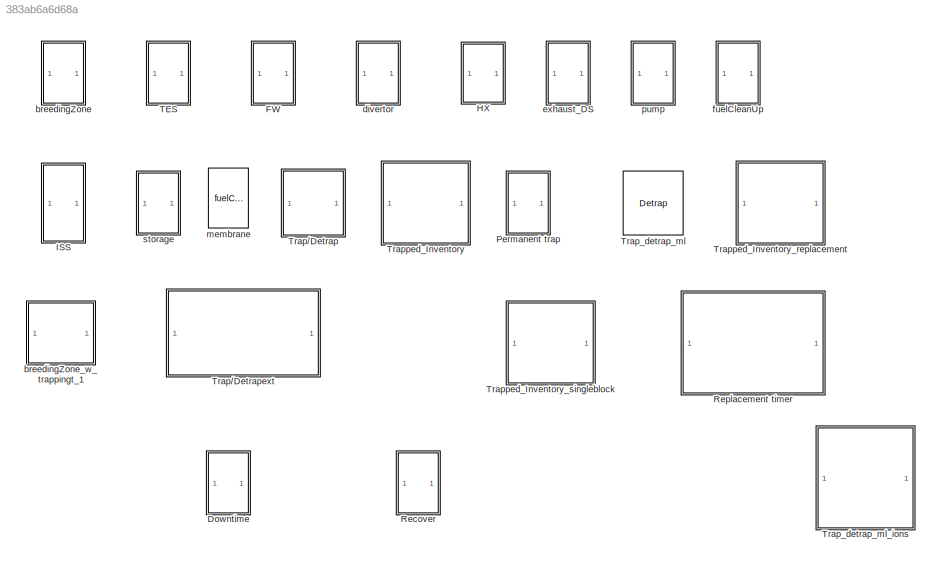
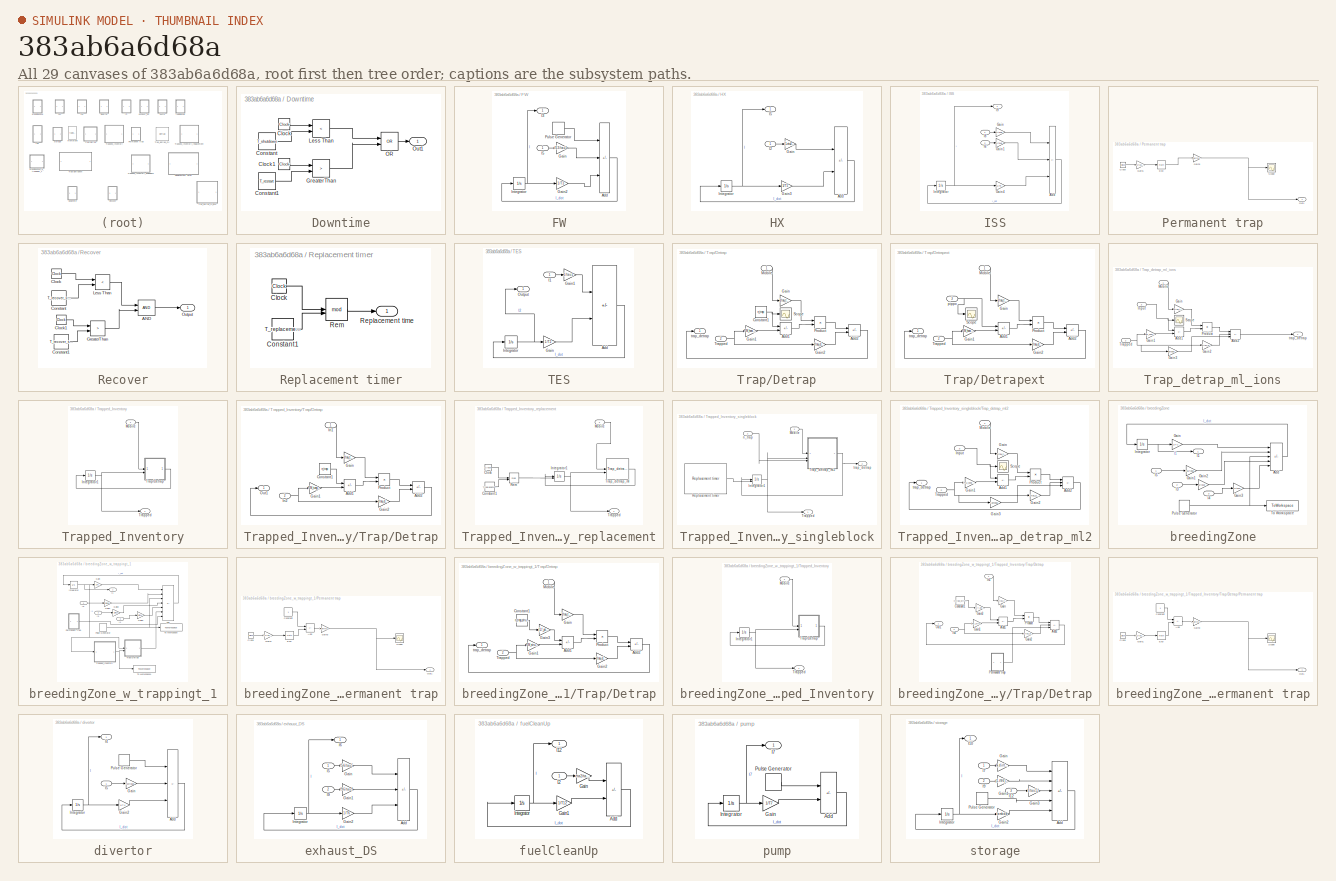
[diagram: thumbnail index - all 29 canvases of the model, root first then tree order]
MODEL slx_383ab6a6d68a
KIND library
CONFIG AbsTol = auto
CONFIG EnableMultiTasking = off
CONFIG FixedStep = auto
CONFIG MaxStep = auto
CONFIG MinStep = auto
CONFIG RelTol = 1e-3
CONFIG SampleTimeConstraint = Unconstrained
CONFIG SolverName = VariableStepAuto
CONFIG StartTime = 0.0
CONFIG StopTime = 10.0
BLOCK [SubSystem] Downtime
BLOCK [Clock] Downtime/Clock
BLOCK [Clock] Downtime/Clock1
BLOCK [Constant] Downtime/Constant
  Value = T_shutdown
BLOCK [Constant] Downtime/Constant1
  Value = T_restart
BLOCK [RelationalOperator] Downtime/GreaterThan
  InputSameDT = off
  Operator = >
  OutDataTypeStr = boolean
  RndMeth = Simplest
BLOCK [RelationalOperator] Downtime/Less Than
  InputSameDT = off
  Operator = <
  OutDataTypeStr = boolean
  RndMeth = Simplest
BLOCK [Logic] Downtime/OR
  AllPortsSameDT = off
  IconShape = distinctive
  Operator = OR
  OutDataTypeStr = boolean
BLOCK [Outport] Downtime/Out1
BLOCK [SubSystem] FW
  LibrarySourceBlock = arc/FW_3
BLOCK [Sum] FW/Add
  IconShape = rectangular
  Inputs = ++-
BLOCK [Gain] FW/Gain
  Gain = f53/tau5
BLOCK [Gain] FW/Gain2
  Gain = 1/T3
BLOCK [Outport] FW/I3
BLOCK [Inport] FW/I5
BLOCK [Integrator] FW/Integrator
BLOCK [DiscretePulseGenerator] FW/Pulse Generator
  Amplitude = fp3*N_dot/TBE
  Period = 1800
  PulseType = Time based
  PulseWidth = AF
BLOCK [SubSystem] HX
BLOCK [Sum] HX/Add
  IconShape = rectangular
  Inputs = +-
BLOCK [Gain] HX/Gain
  Gain = (1-eta2)/tau2
BLOCK [Gain] HX/Gain3
  Gain = 1/T5
BLOCK [Inport] HX/I2
BLOCK [Outport] HX/I5
BLOCK [Integrator] HX/Integrator
BLOCK [SubSystem] ISS
  LibrarySourceBlock = arc/ISS_9
BLOCK [Sum] ISS/Add
  IconShape = rectangular
  Inputs = ++-
BLOCK [Gain] ISS/Gain
  Gain = 1/tau8
BLOCK [Gain] ISS/Gain1
  Gain = 1/tau6
BLOCK [Gain] ISS/Gain4
  Gain = 1/T9
BLOCK [Inport] ISS/I6
  Port = 2
BLOCK [Inport] ISS/I8
BLOCK [Outport] ISS/I9
BLOCK [Integrator] ISS/Integrator
BLOCK [SubSystem] Permanent trap
BLOCK [Clock] Permanent trap/Clock
BLOCK [Math] Permanent trap/Exp
BLOCK [Gain] Permanent trap/Gain1
  Gain = -1/tau_permanent
BLOCK [Gain] Permanent trap/Gain3
  Gain = f_permanent_trap*n_trap*n_tungsten*3*m_u*1/tau_permanent
BLOCK [Outport] Permanent trap/Out1
BLOCK [Scope] Permanent trap/Scope
  Floating = off
  NumInputPorts = 1
  ScopeSpecificationString = Simulink.scopes.TimeScopeBlockCfg('CurrentConfiguration', extmgr.ConfigurationSet(extmgr.Configuration('Core','General UI',true),extmgr.Configuration('Core','Source UI',true),extmgr.Configuration('Sources','WiredSimulink',true,'DataLoggingVariableName','ScopeData1'),extmgr.Configuration('Visuals','Time Domain',true,'SerializedDisplays',{struct('MinYLimReal','-0.0000004','MaxYLimReal','0.0000036','...<+1380ch>  <repeated x3 — deduplicated; at blocks: Scope>
BLOCK [SubSystem] Recover
BLOCK [Logic] Recover/AND
  AllPortsSameDT = off
  IconShape = distinctive
  OutDataTypeStr = boolean
BLOCK [Clock] Recover/Clock
BLOCK [Clock] Recover/Clock1
BLOCK [Constant] Recover/Constant
  Value = T_recover_stop
BLOCK [Constant] Recover/Constant1
  Value = T_recover_start
BLOCK [RelationalOperator] Recover/GreaterThan
  InputSameDT = off
  Operator = >
  OutDataTypeStr = boolean
  RndMeth = Simplest
BLOCK [RelationalOperator] Recover/Less Than
  InputSameDT = off
  Operator = <
  OutDataTypeStr = boolean
  RndMeth = Simplest
BLOCK [Outport] Recover/Output
BLOCK [SubSystem] Replacement timer
BLOCK [Clock] Replacement timer/Clock
BLOCK [Constant] Replacement timer/Constant1
  Value = T_replacement
BLOCK [Math] Replacement timer/Rem
  Operator = mod
BLOCK [Outport] Replacement timer/Replacement time
BLOCK [SubSystem] TES
  LibrarySourceBlock = arc/TES_2
BLOCK [Sum] TES/Add
  IconShape = rectangular
  Inputs = +-
BLOCK [Gain] TES/Gain
  Gain = 1/T2
BLOCK [Gain] TES/Gain1
  Gain = 1/tau1
BLOCK [Inport] TES/I1
BLOCK [Integrator] TES/Integrator
BLOCK [Outport] TES/Output
  IconDisplay = Signal name
BLOCK [SubSystem] Trap//Detrap
BLOCK [Sum] Trap//Detrap/Add1
  IconShape = rectangular
  Inputs = +-
BLOCK [Sum] Trap//Detrap/Add2
  IconShape = rectangular
  Inputs = +-
BLOCK [Constant] Trap//Detrap/Constant1
  Value = n_trap
BLOCK [Gain] Trap//Detrap/Gain
  Gain = 1/tau_trap/n_solute
BLOCK [Gain] Trap//Detrap/Gain1
  Gain = PM_host/PM_tritium/M_host
BLOCK [Gain] Trap//Detrap/Gain2
  Gain = 1/tau_detrap
BLOCK [Inport] Trap//Detrap/Mobile
BLOCK [Product] Trap//Detrap/Product
BLOCK [Scope] Trap//Detrap/Scope
  Floating = off
  NumInputPorts = 1
  ScopeSpecificationString = Simulink.scopes.TimeScopeBlockCfg('CurrentConfiguration', extmgr.ConfigurationSet(extmgr.Configuration('Core','General UI',true),extmgr.Configuration('Core','Source UI',true),extmgr.Configuration('Sources','WiredSimulink',true,'DataLoggingVariableName','ScopeData1'),extmgr.Configuration('Visuals','Time Domain',true),extmgr.Configuration('Tools','Plot Navigation',true),extmgr.Configuration('Tools',...<+40ch>
BLOCK [Inport] Trap//Detrap/Trapped
  Port = 2
BLOCK [Outport] Trap//Detrap/trap_detrap
BLOCK [SubSystem] Trap//Detrapext
  AncestorBlock = arc/Trap//Detrap
BLOCK [Sum] Trap//Detrapext/Add1
  IconShape = rectangular
  Inputs = +-
BLOCK [Sum] Trap//Detrapext/Add2
  IconShape = rectangular
  Inputs = +-
BLOCK [Gain] Trap//Detrapext/Gain
  Gain = 1/tau_trap/n_solute
BLOCK [Gain] Trap//Detrapext/Gain1
  Gain = PM_host/PM_tritium/M_host
BLOCK [Gain] Trap//Detrapext/Gain2
  Gain = 1/tau_detrap
BLOCK [Inport] Trap//Detrapext/Mobile
BLOCK [Product] Trap//Detrapext/Product
BLOCK [Scope] Trap//Detrapext/Scope
  Floating = off
  NumInputPorts = 1
  ScopeSpecificationString = Simulink.scopes.TimeScopeBlockCfg('CurrentConfiguration', extmgr.ConfigurationSet(extmgr.Configuration('Core','General UI',true),extmgr.Configuration('Core','Source UI',true),extmgr.Configuration('Sources','WiredSimulink',true,'DataLoggingVariableName','ScopeData1'),extmgr.Configuration('Visuals','Time Domain',true),extmgr.Configuration('Tools','Plot Navigation',true),extmgr.Configuration('Tools',...<+40ch>
BLOCK [Inport] Trap//Detrapext/Trapped
  Port = 2
BLOCK [Inport] Trap//Detrapext/pippo
  Port = 3
BLOCK [Outport] Trap//Detrapext/trap_detrap
BLOCK [Reference] Trap_detrap_ml  REF=$bdroot/Trap//Detrap
  SourceBlock = $bdroot/Trap//Detrap
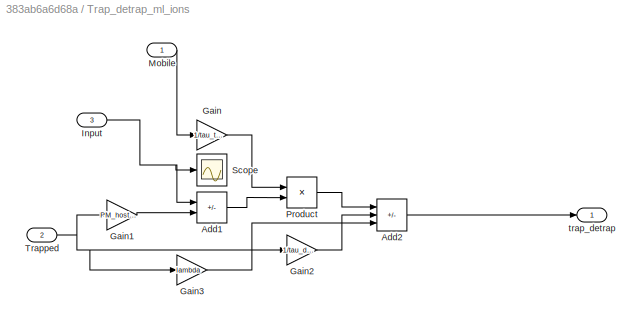
BLOCK [SubSystem] Trap_detrap_ml_ions
  AncestorBlock = arc/Trapped_Inventory_singleblock/Trap_detrap_ml2
BLOCK [Sum] Trap_detrap_ml_ions/Add1
  IconShape = rectangular
  Inputs = +-
BLOCK [Sum] Trap_detrap_ml_ions/Add2
  IconShape = rectangular
  Inputs = +--
BLOCK [Gain] Trap_detrap_ml_ions/Gain
  Gain = 1/tau_trap/n_solute
BLOCK [Gain] Trap_detrap_ml_ions/Gain1
  Gain = PM_host/PM_tritium/M_host
BLOCK [Gain] Trap_detrap_ml_ions/Gain2
  Gain = 1/tau_detrap
BLOCK [Gain] Trap_detrap_ml_ions/Gain3
  Gain = lambda
BLOCK [Inport] Trap_detrap_ml_ions/Input
  Port = 3
BLOCK [Inport] Trap_detrap_ml_ions/Mobile
BLOCK [Product] Trap_detrap_ml_ions/Product
BLOCK [Scope] Trap_detrap_ml_ions/Scope
  Floating = off
  NumInputPorts = 1
  ScopeSpecificationString = Simulink.scopes.TimeScopeBlockCfg('CurrentConfiguration', extmgr.ConfigurationSet(extmgr.Configuration('Core','General UI',true),extmgr.Configuration('Core','Source UI',true),extmgr.Configuration('Sources','WiredSimulink',true,'DataLoggingVariableName','ScopeData1'),extmgr.Configuration('Visuals','Time Domain',true,'SerializedDisplays',{struct('MinYLimReal','-0.00026','MaxYLimReal','0.0023','YLabe...<+1395ch>
BLOCK [Inport] Trap_detrap_ml_ions/Trapped
  Port = 2
BLOCK [Outport] Trap_detrap_ml_ions/trap_detrap
BLOCK [SubSystem] Trapped_Inventory
BLOCK [Integrator] Trapped_Inventory/Integrator1
BLOCK [Inport] Trapped_Inventory/Mobile
BLOCK [SubSystem] Trapped_Inventory/Trap//Detrap
BLOCK [Sum] Trapped_Inventory/Trap//Detrap/Add1
  IconShape = rectangular
  Inputs = +-
BLOCK [Sum] Trapped_Inventory/Trap//Detrap/Add2
  IconShape = rectangular
  Inputs = +-
BLOCK [Constant] Trapped_Inventory/Trap//Detrap/Constant1
  Value = n_trap
BLOCK [Gain] Trapped_Inventory/Trap//Detrap/Gain
  Gain = 1/tau_trap/n_solute
BLOCK [Gain] Trapped_Inventory/Trap//Detrap/Gain1
  Gain = PM_tungsten/PM_tritium/M_tungsten
BLOCK [Gain] Trapped_Inventory/Trap//Detrap/Gain2
  Gain = 1/tau_detrap
BLOCK [Inport] Trapped_Inventory/Trap//Detrap/In1
BLOCK [Inport] Trapped_Inventory/Trap//Detrap/In2
  Port = 2
BLOCK [Outport] Trapped_Inventory/Trap//Detrap/Out1
BLOCK [Product] Trapped_Inventory/Trap//Detrap/Product
BLOCK [Outport] Trapped_Inventory/Trapped
BLOCK [SubSystem] Trapped_Inventory_replacement
  AncestorBlock = arc/Trapped_Inventory
BLOCK [Clock] Trapped_Inventory_replacement/Clock
BLOCK [Constant] Trapped_Inventory_replacement/Constant1
  Value = T_replacement
BLOCK [Integrator] Trapped_Inventory_replacement/Integrator1
  ExternalReset = falling
BLOCK [Inport] Trapped_Inventory_replacement/Mobile
BLOCK [Math] Trapped_Inventory_replacement/Rem
  Operator = mod
BLOCK [Reference] Trapped_Inventory_replacement/Trap_detrap_ml  REF=$bdroot/Trap_detrap_ml
  SourceBlock = $bdroot/Trap_detrap_ml
BLOCK [Outport] Trapped_Inventory_replacement/Trapped
BLOCK [SubSystem] Trapped_Inventory_singleblock
  AncestorBlock = arc/Trapped_Inventory
BLOCK [Integrator] Trapped_Inventory_singleblock/Integrator1
  ExternalReset = falling
BLOCK [Inport] Trapped_Inventory_singleblock/Mobile
BLOCK [Reference] Trapped_Inventory_singleblock/Replacement timer  REF=$bdroot/Replacement timer
  SourceBlock = $bdroot/Replacement timer
BLOCK [SubSystem] Trapped_Inventory_singleblock/Trap_detrap_ml2
  AncestorBlock = arc/Trap_detrap_ml
BLOCK [Sum] Trapped_Inventory_singleblock/Trap_detrap_ml2/Add1
  IconShape = rectangular
  Inputs = +-
BLOCK [Sum] Trapped_Inventory_singleblock/Trap_detrap_ml2/Add2
  IconShape = rectangular
  Inputs = +--
BLOCK [Gain] Trapped_Inventory_singleblock/Trap_detrap_ml2/Gain
  Gain = 1/tau_trap/n_solute
BLOCK [Gain] Trapped_Inventory_singleblock/Trap_detrap_ml2/Gain1
  Gain = PM_host/PM_tritium/M_host
BLOCK [Gain] Trapped_Inventory_singleblock/Trap_detrap_ml2/Gain2
  Gain = 1/tau_detrap
BLOCK [Gain] Trapped_Inventory_singleblock/Trap_detrap_ml2/Gain3
  Gain = lambda
BLOCK [Inport] Trapped_Inventory_singleblock/Trap_detrap_ml2/Input
  Port = 3
BLOCK [Inport] Trapped_Inventory_singleblock/Trap_detrap_ml2/Mobile
BLOCK [Product] Trapped_Inventory_singleblock/Trap_detrap_ml2/Product
BLOCK [Scope] Trapped_Inventory_singleblock/Trap_detrap_ml2/Scope
  Floating = off
  NumInputPorts = 1
  ScopeSpecificationString = Simulink.scopes.TimeScopeBlockCfg('CurrentConfiguration', extmgr.ConfigurationSet(extmgr.Configuration('Core','General UI',true),extmgr.Configuration('Core','Source UI',true),extmgr.Configuration('Sources','WiredSimulink',true,'DataLoggingVariableName','ScopeData1'),extmgr.Configuration('Visuals','Time Domain',true,'SerializedDisplays',{struct('MinYLimReal','-0.00026','MaxYLimReal','0.0023','YLabe...<+1395ch>
BLOCK [Inport] Trapped_Inventory_singleblock/Trap_detrap_ml2/Trapped
  Port = 2
BLOCK [Outport] Trapped_Inventory_singleblock/Trap_detrap_ml2/trap_detrap
BLOCK [Outport] Trapped_Inventory_singleblock/Trapped
BLOCK [Inport] Trapped_Inventory_singleblock/n_trap
  Port = 2
BLOCK [Outport] Trapped_Inventory_singleblock/trap_detrap
  Port = 2
BLOCK [SubSystem] breedingZone
  LibrarySourceBlock = arc/breedingZone_1
BLOCK [Sum] breedingZone/Add
  IconShape = rectangular
  Inputs = -++++
BLOCK [Gain] breedingZone/Gain
  Gain = 1/T1
BLOCK [Gain] breedingZone/Gain1
  Gain = f51/tau5
BLOCK [Gain] breedingZone/Gain2
  Gain = 1/tau3
BLOCK [Gain] breedingZone/Gain3
  Gain = 1/tau4
BLOCK [Outport] breedingZone/I1
  IconDisplay = Signal name
BLOCK [Inport] breedingZone/I3
  IconDisplay = Signal name
  Port = 2
BLOCK [Inport] breedingZone/I4
  IconDisplay = Signal name
  Port = 3
BLOCK [Inport] breedingZone/I5
  IconDisplay = Signal name
BLOCK [Integrator] breedingZone/Integrator
BLOCK [DiscretePulseGenerator] breedingZone/Pulse Generator
  Amplitude = N_dot * TBR
  Period = 1800
  PulseType = Time based
  PulseWidth = AF
BLOCK [ToWorkspace] breedingZone/To Workspace
  FixptAsFi = on
  MaxDataPoints = inf
  SampleTime = -1
  SaveFormat = Timeseries
  VariableName = T_generation
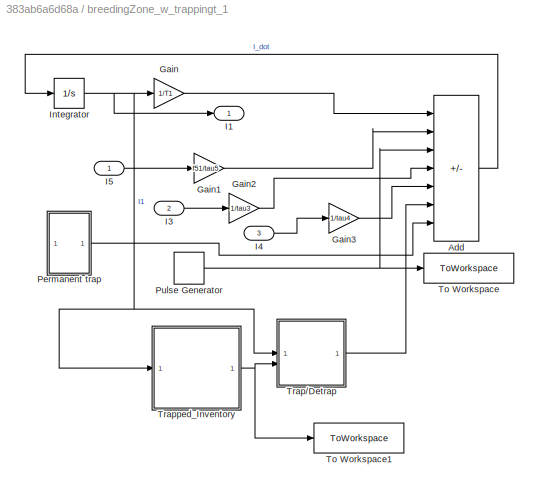
BLOCK [SubSystem] breedingZone_w_trappingt_1
  AncestorBlock = arc/breedingZone_1
  LibrarySourceBlock = arc/breedingZone_1
BLOCK [Sum] breedingZone_w_trappingt_1/Add
  IconShape = rectangular
  Inputs = -++++--
BLOCK [Gain] breedingZone_w_trappingt_1/Gain
  Gain = 1/T1
BLOCK [Gain] breedingZone_w_trappingt_1/Gain1
  Gain = f51/tau5
BLOCK [Gain] breedingZone_w_trappingt_1/Gain2
  Gain = 1/tau3
BLOCK [Gain] breedingZone_w_trappingt_1/Gain3
  Gain = 1/tau4
BLOCK [Outport] breedingZone_w_trappingt_1/I1
  IconDisplay = Signal name
BLOCK [Inport] breedingZone_w_trappingt_1/I3
  IconDisplay = Signal name
  Port = 2
BLOCK [Inport] breedingZone_w_trappingt_1/I4
  IconDisplay = Signal name
  Port = 3
BLOCK [Inport] breedingZone_w_trappingt_1/I5
  IconDisplay = Signal name
BLOCK [Integrator] breedingZone_w_trappingt_1/Integrator
BLOCK [SubSystem] breedingZone_w_trappingt_1/Permanent trap
BLOCK [Sum] breedingZone_w_trappingt_1/Permanent trap/Add
  IconShape = rectangular
  Inputs = +-
BLOCK [Clock] breedingZone_w_trappingt_1/Permanent trap/Clock
BLOCK [Constant] breedingZone_w_trappingt_1/Permanent trap/Constant
BLOCK [Math] breedingZone_w_trappingt_1/Permanent trap/Exp
BLOCK [Gain] breedingZone_w_trappingt_1/Permanent trap/Gain1
  Gain = -1/tau_permanent_structural
BLOCK [Gain] breedingZone_w_trappingt_1/Permanent trap/Gain3
  Gain = f_permanent_trap_structural*n_trap_structural*n_structural*3*m_u*1*(V_structural/2)
BLOCK [Outport] breedingZone_w_trappingt_1/Permanent trap/Out1
BLOCK [Scope] breedingZone_w_trappingt_1/Permanent trap/Scope
  Floating = off
  NumInputPorts = 1
BLOCK [DiscretePulseGenerator] breedingZone_w_trappingt_1/Pulse Generator
  Amplitude = N_dot * TBR
  Period = 1800
  PulseType = Time based
  PulseWidth = AF
BLOCK [ToWorkspace] breedingZone_w_trappingt_1/To Workspace
  FixptAsFi = on
  MaxDataPoints = inf
  SampleTime = -1
  SaveFormat = Timeseries
  VariableName = T_generation
BLOCK [ToWorkspace] breedingZone_w_trappingt_1/To Workspace1
  FixptAsFi = on
  MaxDataPoints = inf
  SampleTime = -1
  VariableName = I_1_trapped
BLOCK [SubSystem] breedingZone_w_trappingt_1/Trap//Detrap
  AncestorBlock = arc/Trap//Detrap
BLOCK [Sum] breedingZone_w_trappingt_1/Trap//Detrap/Add1
  IconShape = rectangular
  Inputs = +-
BLOCK [Sum] breedingZone_w_trappingt_1/Trap//Detrap/Add2
  IconShape = rectangular
  Inputs = +-
BLOCK [Constant] breedingZone_w_trappingt_1/Trap//Detrap/Constant1
  Value = n_trap_structural
BLOCK [Gain] breedingZone_w_trappingt_1/Trap//Detrap/Gain
  Gain = 1/tau_trap_structural/n_solute
BLOCK [Gain] breedingZone_w_trappingt_1/Trap//Detrap/Gain1
  Gain = PM_structural/PM_tritium/M_structural
BLOCK [Gain] breedingZone_w_trappingt_1/Trap//Detrap/Gain2
  Gain = 1/tau_detrap_structural
BLOCK [Gain] breedingZone_w_trappingt_1/Trap//Detrap/Gain3
  Gain = (1-f_permanent_trap_structural)
BLOCK [Inport] breedingZone_w_trappingt_1/Trap//Detrap/Mobile
BLOCK [Product] breedingZone_w_trappingt_1/Trap//Detrap/Product
BLOCK [Inport] breedingZone_w_trappingt_1/Trap//Detrap/Trapped
  Port = 2
BLOCK [Outport] breedingZone_w_trappingt_1/Trap//Detrap/trap_detrap
BLOCK [SubSystem] breedingZone_w_trappingt_1/Trapped_Inventory
  AncestorBlock = arc/Trapped_Inventory
BLOCK [Integrator] breedingZone_w_trappingt_1/Trapped_Inventory/Integrator1
BLOCK [Inport] breedingZone_w_trappingt_1/Trapped_Inventory/Mobile
BLOCK [SubSystem] breedingZone_w_trappingt_1/Trapped_Inventory/Trap//Detrap
BLOCK [Sum] breedingZone_w_trappingt_1/Trapped_Inventory/Trap//Detrap/Add1
  IconShape = rectangular
  Inputs = +-
BLOCK [Sum] breedingZone_w_trappingt_1/Trapped_Inventory/Trap//Detrap/Add2
  IconShape = rectangular
  Inputs = +-+
BLOCK [Constant] breedingZone_w_trappingt_1/Trapped_Inventory/Trap//Detrap/Constant1
  Value = n_trap_structural
BLOCK [Gain] breedingZone_w_trappingt_1/Trapped_Inventory/Trap//Detrap/Gain
  Gain = 1/tau_trap_structural/n_solute
BLOCK [Gain] breedingZone_w_trappingt_1/Trapped_Inventory/Trap//Detrap/Gain1
  Gain = PM_structural/PM_tritium/M_structural
BLOCK [Gain] breedingZone_w_trappingt_1/Trapped_Inventory/Trap//Detrap/Gain2
  Gain = 1/tau_detrap_structural
BLOCK [Gain] breedingZone_w_trappingt_1/Trapped_Inventory/Trap//Detrap/Gain3
  Gain = (1-f_permanent_trap_structural)
BLOCK [Inport] breedingZone_w_trappingt_1/Trapped_Inventory/Trap//Detrap/In1
BLOCK [Inport] breedingZone_w_trappingt_1/Trapped_Inventory/Trap//Detrap/In2
  Port = 2
BLOCK [Outport] breedingZone_w_trappingt_1/Trapped_Inventory/Trap//Detrap/Out1
BLOCK [SubSystem] breedingZone_w_trappingt_1/Trapped_Inventory/Trap//Detrap/Permanent trap
BLOCK [Sum] breedingZone_w_trappingt_1/Trapped_Inventory/Trap//Detrap/Permanent trap/Add
  IconShape = rectangular
  Inputs = +-
BLOCK [Clock] breedingZone_w_trappingt_1/Trapped_Inventory/Trap//Detrap/Permanent trap/Clock
BLOCK [Constant] breedingZone_w_trappingt_1/Trapped_Inventory/Trap//Detrap/Permanent trap/Constant
BLOCK [Math] breedingZone_w_trappingt_1/Trapped_Inventory/Trap//Detrap/Permanent trap/Exp
BLOCK [Gain] breedingZone_w_trappingt_1/Trapped_Inventory/Trap//Detrap/Permanent trap/Gain1
  Gain = -1/tau_permanent_structural
BLOCK [Gain] breedingZone_w_trappingt_1/Trapped_Inventory/Trap//Detrap/Permanent trap/Gain3
  Gain = f_permanent_trap_structural*n_trap_structural*n_structural*3*m_u*1*(V_structural/2)
BLOCK [Outport] breedingZone_w_trappingt_1/Trapped_Inventory/Trap//Detrap/Permanent trap/Out1
BLOCK [Scope] breedingZone_w_trappingt_1/Trapped_Inventory/Trap//Detrap/Permanent trap/Scope
  Floating = off
  NumInputPorts = 1
BLOCK [Product] breedingZone_w_trappingt_1/Trapped_Inventory/Trap//Detrap/Product
BLOCK [Outport] breedingZone_w_trappingt_1/Trapped_Inventory/Trapped
BLOCK [SubSystem] divertor
  LibrarySourceBlock = arc/divertor_4
BLOCK [Sum] divertor/Add
  IconShape = rectangular
  Inputs = ++-
BLOCK [Gain] divertor/Gain
  Gain = f54/tau5
BLOCK [Gain] divertor/Gain2
  Gain = 1/T4
BLOCK [Outport] divertor/I4
BLOCK [Inport] divertor/I5
BLOCK [Integrator] divertor/Integrator
BLOCK [DiscretePulseGenerator] divertor/Pulse Generator
  Amplitude = fp4*N_dot/TBE
  Period = 1800
  PulseType = Time based
  PulseWidth = AF
BLOCK [SubSystem] exhaust_DS
BLOCK [Sum] exhaust_DS/Add
  IconShape = rectangular
  Inputs = ++-
BLOCK [Gain] exhaust_DS/Gain
  Gain = f56/tau5
BLOCK [Gain] exhaust_DS/Gain1
  Gain = f96/tau9
BLOCK [Gain] exhaust_DS/Gain2
  Gain = 1/T6
BLOCK [Inport] exhaust_DS/I5
BLOCK [Outport] exhaust_DS/I6
BLOCK [Inport] exhaust_DS/I9
  Port = 2
BLOCK [Integrator] exhaust_DS/Integrator
BLOCK [SubSystem] fuelCleanUp
  LibrarySourceBlock = arc/fuelCleanUp_8
BLOCK [Sum] fuelCleanUp/Add
  IconShape = rectangular
  Inputs = +-
BLOCK [Gain] fuelCleanUp/Gain
  Gain = eta2/tau2
BLOCK [Gain] fuelCleanUp/Gain1
  Gain = 1/T12
BLOCK [Outport] fuelCleanUp/I12
BLOCK [Inport] fuelCleanUp/I2
BLOCK [Integrator] fuelCleanUp/Integrator
BLOCK [Reference] membrane  REF=$bdroot/fuelCleanUp_8
  LibrarySourceBlock = arc/fuelCleanUp_8
  SourceBlock = $bdroot/fuelCleanUp_8
  SourceType = SubSystem
BLOCK [SubSystem] pump
  LibrarySourceBlock = arc/pump_7
BLOCK [Sum] pump/Add
  IconShape = rectangular
  Inputs = +-
BLOCK [Gain] pump/Gain
  Gain = 1/T7
BLOCK [Outport] pump/I7
  IconDisplay = Signal name
BLOCK [Integrator] pump/Integrator
BLOCK [DiscretePulseGenerator] pump/Pulse Generator
  Amplitude = (1-TBE-fp3-fp4)*N_dot/TBE
  Period = 1800
  PulseType = Time based
  PulseWidth = AF
BLOCK [SubSystem] storage
  LibrarySourceBlock = arc/storage_10
BLOCK [Sum] storage/Add
  IconShape = rectangular
  Inputs = +++--
BLOCK [Gain] storage/Gain
  Gain = f_dir/tau7
BLOCK [Gain] storage/Gain1
  Gain = (1-f96)/tau9
BLOCK [Gain] storage/Gain2
  Gain = lambda
BLOCK [Gain] storage/Gain3
  Gain = 1/tau12
BLOCK [Outport] storage/I10
BLOCK [Inport] storage/I12
  Port = 3
BLOCK [Inport] storage/I7
BLOCK [Inport] storage/I9
  Port = 2
BLOCK [Integrator] storage/Integrator
  InitialCondition = I_s_0
BLOCK [DiscretePulseGenerator] storage/Pulse Generator
  Amplitude = N_dot/TBE
  Period = 1800
  PulseType = Time based
  PulseWidth = AF
LINE Downtime/Clock1:1 -> Downtime/GreaterThan:1
LINE Downtime/Clock:1 -> Downtime/Less Than:1
LINE Downtime/Constant1:1 -> Downtime/GreaterThan:2
LINE Downtime/Constant:1 -> Downtime/Less Than:2
LINE Downtime/GreaterThan:1 -> Downtime/OR:2
LINE Downtime/Less Than:1 -> Downtime/OR:1
LINE Downtime/OR:1 -> Downtime/Out1:1
LINE FW/Add:1 -> FW/Integrator:1
LINE FW/Gain2:1 -> FW/Add:3
LINE FW/Gain:1 -> FW/Add:2
LINE FW/I5:1 -> FW/Gain:1
NET FW/Integrator:1 -> FW/Gain2:1, FW/I3:1
LINE FW/Pulse Generator:1 -> FW/Add:1
LINE HX/Add:1 -> HX/Integrator:1
LINE HX/Gain3:1 -> HX/Add:2
LINE HX/Gain:1 -> HX/Add:1
LINE HX/I2:1 -> HX/Gain:1
NET HX/Integrator:1 -> HX/Gain3:1, HX/I5:1
LINE ISS/Add:1 -> ISS/Integrator:1
LINE ISS/Gain1:1 -> ISS/Add:2
LINE ISS/Gain4:1 -> ISS/Add:3
LINE ISS/Gain:1 -> ISS/Add:1
LINE ISS/I6:1 -> ISS/Gain1:1
LINE ISS/I8:1 -> ISS/Gain:1
NET ISS/Integrator:1 -> ISS/Gain4:1, ISS/I9:1
LINE Permanent trap/Clock:1 -> Permanent trap/Gain1:1
LINE Permanent trap/Exp:1 -> Permanent trap/Gain3:1
LINE Permanent trap/Gain1:1 -> Permanent trap/Exp:1
NET Permanent trap/Gain3:1 -> Permanent trap/Out1:1, Permanent trap/Scope:1
LINE Recover/AND:1 -> Recover/Output:1
LINE Recover/Clock1:1 -> Recover/GreaterThan:1
LINE Recover/Clock:1 -> Recover/Less Than:1
LINE Recover/Constant1:1 -> Recover/GreaterThan:2
LINE Recover/Constant:1 -> Recover/Less Than:2
LINE Recover/GreaterThan:1 -> Recover/AND:2
LINE Recover/Less Than:1 -> Recover/AND:1
LINE Replacement timer/Clock:1 -> Replacement timer/Rem:1
LINE Replacement timer/Constant1:1 -> Replacement timer/Rem:2
LINE Replacement timer/Rem:1 -> Replacement timer/Replacement time:1
LINE TES/Add:1 -> TES/Integrator:1
LINE TES/Gain1:1 -> TES/Add:1
LINE TES/Gain:1 -> TES/Add:2
LINE TES/I1:1 -> TES/Gain1:1
NET TES/Integrator:1 -> TES/Gain:1, TES/Output:1
LINE Trap//Detrap/Add1:1 -> Trap//Detrap/Product:2
LINE Trap//Detrap/Add2:1 -> Trap//Detrap/trap_detrap:1
NET Trap//Detrap/Constant1:1 -> Trap//Detrap/Add1:1, Trap//Detrap/Scope:1
LINE Trap//Detrap/Gain1:1 -> Trap//Detrap/Add1:2
LINE Trap//Detrap/Gain2:1 -> Trap//Detrap/Add2:2
LINE Trap//Detrap/Gain:1 -> Trap//Detrap/Product:1
LINE Trap//Detrap/Mobile:1 -> Trap//Detrap/Gain:1
LINE Trap//Detrap/Product:1 -> Trap//Detrap/Add2:1
NET Trap//Detrap/Trapped:1 -> Trap//Detrap/Gain1:1, Trap//Detrap/Gain2:1
NET Trapped_Inventory/Integrator1:1 -> Trapped_Inventory/Trap//Detrap:2, Trapped_Inventory/Trapped:1
LINE Trapped_Inventory/Mobile:1 -> Trapped_Inventory/Trap//Detrap:1
LINE Trapped_Inventory/Trap//Detrap/Add1:1 -> Trapped_Inventory/Trap//Detrap/Product:2
LINE Trapped_Inventory/Trap//Detrap/Add2:1 -> Trapped_Inventory/Trap//Detrap/Out1:1
LINE Trapped_Inventory/Trap//Detrap/Constant1:1 -> Trapped_Inventory/Trap//Detrap/Add1:1
LINE Trapped_Inventory/Trap//Detrap/Gain1:1 -> Trapped_Inventory/Trap//Detrap/Add1:2
LINE Trapped_Inventory/Trap//Detrap/Gain2:1 -> Trapped_Inventory/Trap//Detrap/Add2:2
LINE Trapped_Inventory/Trap//Detrap/Gain:1 -> Trapped_Inventory/Trap//Detrap/Product:1
LINE Trapped_Inventory/Trap//Detrap/In1:1 -> Trapped_Inventory/Trap//Detrap/Gain:1
NET Trapped_Inventory/Trap//Detrap/In2:1 -> Trapped_Inventory/Trap//Detrap/Gain1:1, Trapped_Inventory/Trap//Detrap/Gain2:1
LINE Trapped_Inventory/Trap//Detrap/Product:1 -> Trapped_Inventory/Trap//Detrap/Add2:1
LINE Trapped_Inventory/Trap//Detrap:1 -> Trapped_Inventory/Integrator1:1
LINE breedingZone/Add:1 -> breedingZone/Integrator:1
LINE breedingZone/Gain1:1 -> breedingZone/Add:2
LINE breedingZone/Gain2:1 -> breedingZone/Add:4
LINE breedingZone/Gain3:1 -> breedingZone/Add:5
LINE breedingZone/Gain:1 -> breedingZone/Add:1
LINE breedingZone/I3:1 -> breedingZone/Gain2:1
LINE breedingZone/I4:1 -> breedingZone/Gain3:1
LINE breedingZone/I5:1 -> breedingZone/Gain1:1
NET breedingZone/Integrator:1 -> breedingZone/Gain:1, breedingZone/I1:1
NET breedingZone/Pulse Generator:1 -> breedingZone/Add:3, breedingZone/To Workspace:1
LINE divertor/Add:1 -> divertor/Integrator:1
LINE divertor/Gain2:1 -> divertor/Add:3
LINE divertor/Gain:1 -> divertor/Add:2
LINE divertor/I5:1 -> divertor/Gain:1
NET divertor/Integrator:1 -> divertor/Gain2:1, divertor/I4:1
LINE divertor/Pulse Generator:1 -> divertor/Add:1
LINE exhaust_DS/Add:1 -> exhaust_DS/Integrator:1
LINE exhaust_DS/Gain1:1 -> exhaust_DS/Add:2
LINE exhaust_DS/Gain2:1 -> exhaust_DS/Add:3
LINE exhaust_DS/Gain:1 -> exhaust_DS/Add:1
LINE exhaust_DS/I5:1 -> exhaust_DS/Gain:1
LINE exhaust_DS/I9:1 -> exhaust_DS/Gain1:1
NET exhaust_DS/Integrator:1 -> exhaust_DS/Gain2:1, exhaust_DS/I6:1
LINE fuelCleanUp/Add:1 -> fuelCleanUp/Integrator:1
LINE fuelCleanUp/Gain1:1 -> fuelCleanUp/Add:2
LINE fuelCleanUp/Gain:1 -> fuelCleanUp/Add:1
LINE fuelCleanUp/I2:1 -> fuelCleanUp/Gain:1
NET fuelCleanUp/Integrator:1 -> fuelCleanUp/Gain1:1, fuelCleanUp/I12:1
LINE pump/Add:1 -> pump/Integrator:1
LINE pump/Gain:1 -> pump/Add:2
NET pump/Integrator:1 -> pump/Gain:1, pump/I7:1
LINE pump/Pulse Generator:1 -> pump/Add:1
LINE storage/Add:1 -> storage/Integrator:1
LINE storage/Gain1:1 -> storage/Add:2
LINE storage/Gain2:1 -> storage/Add:5
LINE storage/Gain3:1 -> storage/Add:3
LINE storage/Gain:1 -> storage/Add:1
LINE storage/I12:1 -> storage/Gain3:1
LINE storage/I7:1 -> storage/Gain:1
LINE storage/I9:1 -> storage/Gain1:1
NET storage/Integrator:1 -> storage/Gain2:1, storage/I10:1
LINE storage/Pulse Generator:1 -> storage/Add:4
note: NET lines group one-source signal fan-out (src -> all destinations, sorted); 1:1 wires keep LINE
